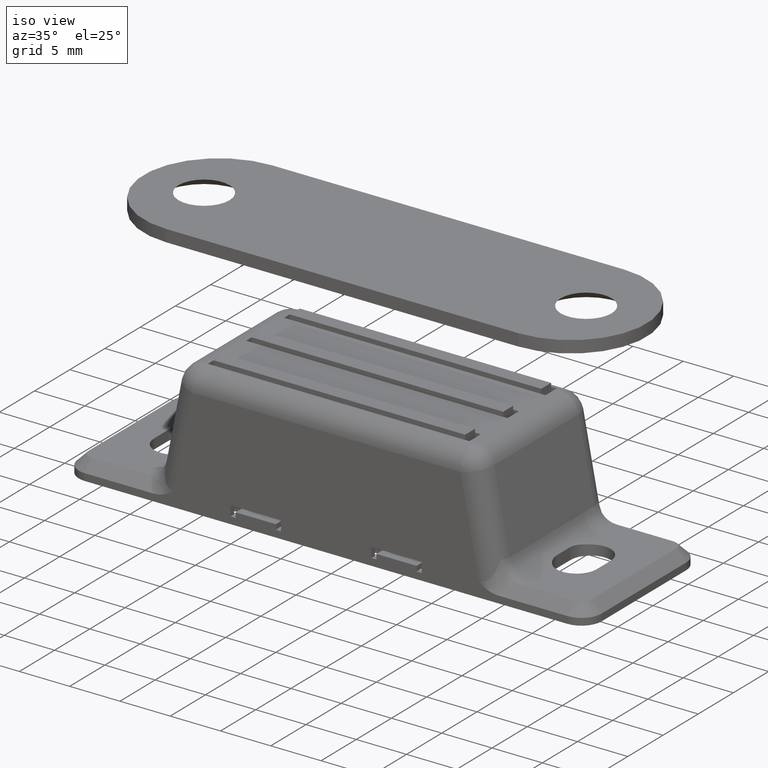
[diagram: clean part render]
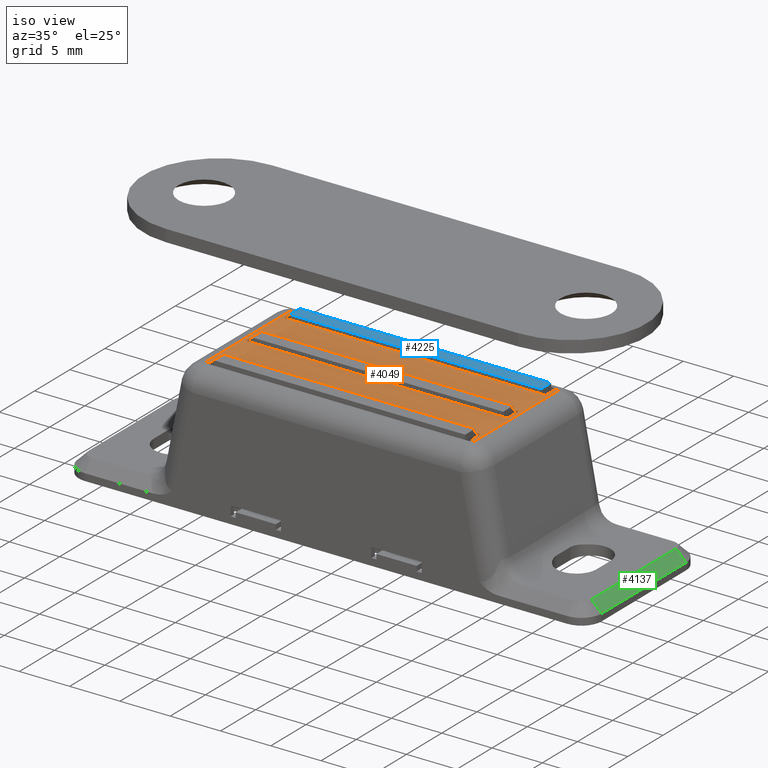
[diagram: same view with three faces highlighted in distinct colors, each labeled with its STEP entity id]
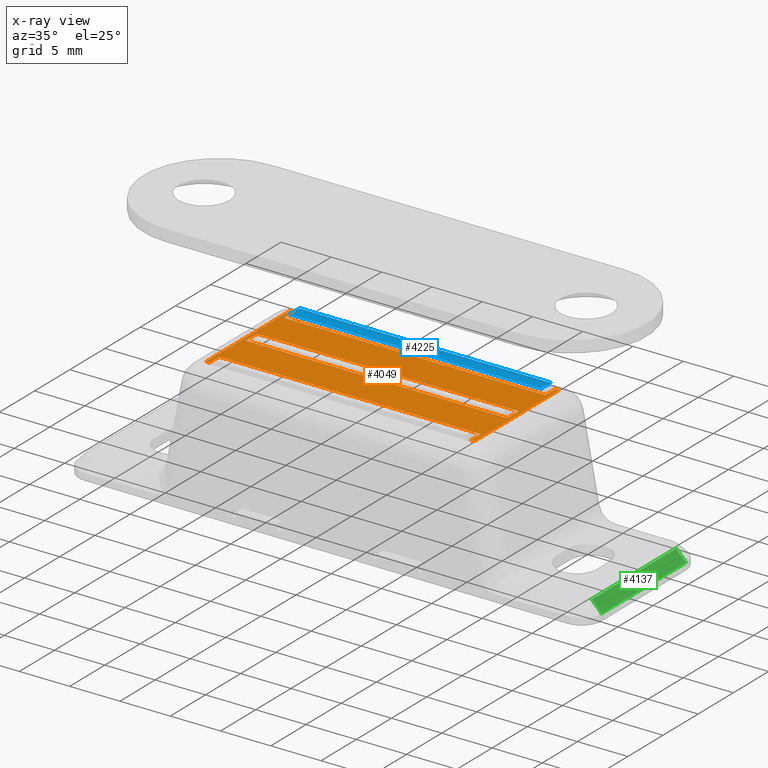
[diagram: x-ray of the same camera — body ghosted, the three highlighted faces saturated]
A machine part, iso view with three faces highlighted in distinct colors.
The next image is the same camera in x-ray (body ghosted, the three faces saturated) — at least one of them is partly hidden behind the body in this view.
Their STEP definitions:

[orange] entity #4049 — the highlighted planar face has unit normal (0, 0, 1).
#140=FACE_BOUND('',#569,.T.);
#339=FACE_OUTER_BOUND('',#568,.T.);
#568=EDGE_LOOP('',(#2798,#2799,#2800,#2801,#2802,#2803,#2804,#2805,#2806,
#2807,#2808,#2809));
#569=EDGE_LOOP('',(#2810,#2811,#2812,#2813));
#840=LINE('',#5850,#1280);
#842=LINE('',#5856,#1282);
#849=LINE('',#5874,#1289);
#852=LINE('',#5882,#1292);
#855=LINE('',#5888,#1295);
#858=LINE('',#5894,#1298);
#861=LINE('',#5898,#1301);
#865=LINE('',#5911,#1305);
#869=LINE('',#5922,#1309);
#873=LINE('',#5930,#1313);
#880=LINE('',#5953,#1320);
#881=LINE('',#5955,#1321);
#882=LINE('',#5956,#1322);
#883=LINE('',#5958,#1323);
#884=LINE('',#5960,#1324);
#885=LINE('',#5961,#1325);
#1280=VECTOR('',#4692,26.);
#1282=VECTOR('',#4698,1.4);
#1289=VECTOR('',#4715,1.4);
#1292=VECTOR('',#4720,1.6);
#1295=VECTOR('',#4725,26.);
#1298=VECTOR('',#4730,1.6);
#1301=VECTOR('',#4735,26.);
#1305=VECTOR('',#4745,1.4);
#1309=VECTOR('',#4755,1.4);
#1313=VECTOR('',#4763,26.);
#1320=VECTOR('',#4784,0.351327228364999);
#1321=VECTOR('',#4785,12.);
#1322=VECTOR('',#4786,0.351327228364999);
#1323=VECTOR('',#4787,0.351327228364999);
#1324=VECTOR('',#4788,12.);
#1325=VECTOR('',#4789,0.351327228364999);
#1704=VERTEX_POINT('',#5847);
#1705=VERTEX_POINT('',#5849);
#1706=VERTEX_POINT('',#5853);
#1712=VERTEX_POINT('',#5869);
#1716=VERTEX_POINT('',#5879);
#1717=VERTEX_POINT('',#5881);
#1719=VERTEX_POINT('',#5887);
#1721=VERTEX_POINT('',#5893);
#1723=VERTEX_POINT('',#5901);
#1727=VERTEX_POINT('',#5909);
#1730=VERTEX_POINT('',#5919);
#1731=VERTEX_POINT('',#5921);
#1742=VERTEX_POINT('',#5952);
#1743=VERTEX_POINT('',#5954);
#1744=VERTEX_POINT('',#5957);
#1745=VERTEX_POINT('',#5959);
#2108=EDGE_CURVE('',#1705,#1704,#840,.T.);
#2111=EDGE_CURVE('',#1704,#1706,#842,.T.);
#2121=EDGE_CURVE('',#1712,#1705,#849,.T.);
#2124=EDGE_CURVE('',#1717,#1716,#852,.T.);
#2127=EDGE_CURVE('',#1719,#1717,#855,.T.);
#2130=EDGE_CURVE('',#1721,#1719,#858,.T.);
#2133=EDGE_CURVE('',#1716,#1721,#861,.T.);
#2139=EDGE_CURVE('',#1723,#1727,#865,.T.);
#2144=EDGE_CURVE('',#1731,#1730,#869,.T.);
#2149=EDGE_CURVE('',#1727,#1731,#873,.T.);
#2160=EDGE_CURVE('',#1742,#1706,#880,.T.);
#2161=EDGE_CURVE('',#1743,#1742,#881,.T.);
#2162=EDGE_CURVE('',#1723,#1743,#882,.T.);
#2163=EDGE_CURVE('',#1744,#1730,#883,.T.);
#2164=EDGE_CURVE('',#1745,#1744,#884,.T.);
#2165=EDGE_CURVE('',#1712,#1745,#885,.T.);
#2798=ORIENTED_EDGE('',*,*,#2121,.T.);
#2799=ORIENTED_EDGE('',*,*,#2108,.T.);
#2800=ORIENTED_EDGE('',*,*,#2111,.T.);
#2801=ORIENTED_EDGE('',*,*,#2160,.F.);
#2802=ORIENTED_EDGE('',*,*,#2161,.F.);
#2803=ORIENTED_EDGE('',*,*,#2162,.F.);
#2804=ORIENTED_EDGE('',*,*,#2139,.T.);
#2805=ORIENTED_EDGE('',*,*,#2149,.T.);
#2806=ORIENTED_EDGE('',*,*,#2144,.T.);
#2807=ORIENTED_EDGE('',*,*,#2163,.F.);
#2808=ORIENTED_EDGE('',*,*,#2164,.F.);
#2809=ORIENTED_EDGE('',*,*,#2165,.F.);
#2810=ORIENTED_EDGE('',*,*,#2124,.T.);
#2811=ORIENTED_EDGE('',*,*,#2133,.T.);
#2812=ORIENTED_EDGE('',*,*,#2130,.T.);
#2813=ORIENTED_EDGE('',*,*,#2127,.T.);
#3898=PLANE('',#4299);
#4049=ADVANCED_FACE('',(#339,#140),#3898,.T.);
#4299=AXIS2_PLACEMENT_3D('',#5951,#4782,#4783);
#4692=DIRECTION('',(-1.,0.,0.));
#4698=DIRECTION('',(0.,1.,0.));
#4715=DIRECTION('',(0.,-1.,0.));
#4720=DIRECTION('',(0.,1.,0.));
#4725=DIRECTION('',(-1.,-5.33761069531325E-18,0.));
#4730=DIRECTION('',(0.,-1.,0.));
#4735=DIRECTION('',(1.,-2.66880534765663E-17,0.));
#4745=DIRECTION('',(0.,1.,0.));
#4755=DIRECTION('',(1.38777878078144E-15,-1.,0.));
#4763=DIRECTION('',(1.,0.,0.));
#4782=DIRECTION('center_axis',(0.,0.,1.));
#4783=DIRECTION('ref_axis',(1.,0.,0.));
#4784=DIRECTION('',(1.,0.,0.));
#4785=DIRECTION('',(0.,1.,0.));
#4786=DIRECTION('',(-1.,0.,0.));
#4787=DIRECTION('',(-1.,0.,0.));
#4788=DIRECTION('',(0.,-1.,0.));
#4789=DIRECTION('',(1.,0.,0.));
#5847=CARTESIAN_POINT('',(-13.,4.6,12.8));
#5849=CARTESIAN_POINT('',(13.,4.6,12.8));
#5850=CARTESIAN_POINT('',(-1.,4.6,12.8));
#5853=CARTESIAN_POINT('',(-13.,6.,12.8));
#5856=CARTESIAN_POINT('',(-13.,2.3,12.8));
#5869=CARTESIAN_POINT('',(13.,6.,12.8));
#5874=CARTESIAN_POINT('',(13.,3.1,12.8));
#5879=CARTESIAN_POINT('',(-13.,0.800000000000001,12.8));
#5881=CARTESIAN_POINT('',(-13.,-0.800000000000001,12.8));
#5882=CARTESIAN_POINT('',(-13.,-0.4,12.8));
#5887=CARTESIAN_POINT('',(13.,-0.800000000000001,12.8));
#5888=CARTESIAN_POINT('',(-1.,-0.800000000000001,12.8));
#5893=CARTESIAN_POINT('',(13.,0.8,12.8));
#5894=CARTESIAN_POINT('',(13.,0.4,12.8));
#5898=CARTESIAN_POINT('',(-14.,0.800000000000001,12.8));
#5901=CARTESIAN_POINT('',(-13.,-6.,12.8));
#5909=CARTESIAN_POINT('',(-13.,-4.6,12.8));
#5911=CARTESIAN_POINT('',(-13.,-3.1,12.8));
#5919=CARTESIAN_POINT('',(13.,-6.,12.8));
#5921=CARTESIAN_POINT('',(13.,-4.6,12.8));
#5922=CARTESIAN_POINT('',(13.,-2.29999999999998,12.8));
#5930=CARTESIAN_POINT('',(-14.,-4.6,12.8));
#5951=CARTESIAN_POINT('Origin',(-15.,0.,12.8));
#5952=CARTESIAN_POINT('',(-13.351327228365,6.,12.8));
#5953=CARTESIAN_POINT('',(-7.5,6.,12.8));
#5954=CARTESIAN_POINT('',(-13.351327228365,-6.,12.8));
#5955=CARTESIAN_POINT('',(-13.351327228365,0.,12.8));
#5956=CARTESIAN_POINT('',(-7.5,-6.,12.8));
#5957=CARTESIAN_POINT('',(13.351327228365,-6.,12.8));
#5958=CARTESIAN_POINT('',(-7.5,-6.,12.8));
#5959=CARTESIAN_POINT('',(13.351327228365,6.,12.8));
#5960=CARTESIAN_POINT('',(13.351327228365,0.,12.8));
#5961=CARTESIAN_POINT('',(-7.5,6.,12.8));

[blue] entity #4225 — the highlighted planar face has unit normal (0, 0, 1).
#515=FACE_OUTER_BOUND('',#761,.T.);
#761=EDGE_LOOP('',(#3770,#3771,#3772,#3773));
#1182=LINE('',#7460,#1622);
#1188=LINE('',#7474,#1628);
#1194=LINE('',#7482,#1634);
#1196=LINE('',#7486,#1636);
#1622=VECTOR('',#5618,1.4);
#1628=VECTOR('',#5628,1.4);
#1634=VECTOR('',#5638,25.);
#1636=VECTOR('',#5644,25.);
#2022=VERTEX_POINT('',#7456);
#2023=VERTEX_POINT('',#7458);
#2028=VERTEX_POINT('',#7471);
#2029=VERTEX_POINT('',#7473);
#2606=EDGE_CURVE('',#2022,#2023,#1182,.T.);
#2612=EDGE_CURVE('',#2029,#2028,#1188,.T.);
#2618=EDGE_CURVE('',#2029,#2023,#1194,.T.);
#2620=EDGE_CURVE('',#2022,#2028,#1196,.T.);
#3770=ORIENTED_EDGE('',*,*,#2606,.T.);
#3771=ORIENTED_EDGE('',*,*,#2618,.F.);
#3772=ORIENTED_EDGE('',*,*,#2612,.T.);
#3773=ORIENTED_EDGE('',*,*,#2620,.F.);
#4000=PLANE('',#4571);
#4225=ADVANCED_FACE('',(#515),#4000,.T.);
#4571=AXIS2_PLACEMENT_3D('',#7485,#5642,#5643);
#5618=DIRECTION('',(0.,1.,0.));
#5628=DIRECTION('',(0.,-1.,0.));
#5638=DIRECTION('',(1.,0.,0.));
#5642=DIRECTION('center_axis',(0.,0.,1.));
#5643=DIRECTION('ref_axis',(0.,-1.,0.));
#5644=DIRECTION('',(-1.,0.,0.));
#7456=CARTESIAN_POINT('',(12.5,4.7,13.2));
#7458=CARTESIAN_POINT('',(12.5,6.1,13.2));
#7460=CARTESIAN_POINT('',(12.5,-1.66533453693773E-15,13.2));
#7471=CARTESIAN_POINT('',(-12.5,4.7,13.2));
#7473=CARTESIAN_POINT('',(-12.5,6.1,13.2));
#7474=CARTESIAN_POINT('',(-12.5,-1.66533453693773E-15,13.2));
#7482=CARTESIAN_POINT('',(0.,6.1,13.2));
#7485=CARTESIAN_POINT('Origin',(0.,6.1,13.2));
#7486=CARTESIAN_POINT('',(0.,4.7,13.2));

[green] entity #4137 — the highlighted planar face has unit normal (0.7071, 0, 0.7071).
#427=FACE_OUTER_BOUND('',#664,.T.);
#664=EDGE_LOOP('',(#3280,#3281,#3282,#3283));
#977=LINE('',#6990,#1417);
#993=LINE('',#7027,#1433);
#994=LINE('',#7031,#1434);
#995=LINE('',#7032,#1435);
#1417=VECTOR('',#5175,12.);
#1433=VECTOR('',#5219,1.41421356237311);
#1434=VECTOR('',#5224,1.4142135623731);
#1435=VECTOR('',#5225,12.);
#1876=VERTEX_POINT('',#6987);
#1877=VERTEX_POINT('',#6989);
#1884=VERTEX_POINT('',#7026);
#1885=VERTEX_POINT('',#7030);
#2376=EDGE_CURVE('',#1877,#1876,#977,.T.);
#2395=EDGE_CURVE('',#1877,#1884,#993,.T.);
#2397=EDGE_CURVE('',#1876,#1885,#994,.T.);
#2398=EDGE_CURVE('',#1885,#1884,#995,.T.);
#3280=ORIENTED_EDGE('',*,*,#2395,.F.);
#3281=ORIENTED_EDGE('',*,*,#2376,.T.);
#3282=ORIENTED_EDGE('',*,*,#2397,.T.);
#3283=ORIENTED_EDGE('',*,*,#2398,.T.);
#3927=PLANE('',#4462);
#4137=ADVANCED_FACE('',(#427),#3927,.T.);
#4462=AXIS2_PLACEMENT_3D('',#7029,#5222,#5223);
#5175=DIRECTION('',(0.,-1.,0.));
#5219=DIRECTION('',(0.707106781186541,0.,-0.707106781186554));
#5222=DIRECTION('center_axis',(0.707106781186549,0.,0.707106781186546));
#5223=DIRECTION('ref_axis',(0.707106781186546,0.,-0.707106781186549));
#5224=DIRECTION('',(0.707106781186546,0.,-0.707106781186549));
#5225=DIRECTION('',(0.,1.,0.));
#6987=CARTESIAN_POINT('',(25.,-6.,1.7));
#6989=CARTESIAN_POINT('',(25.,6.,1.7));
#6990=CARTESIAN_POINT('',(25.,0.,1.7));
#7026=CARTESIAN_POINT('',(26.,6.,0.699999999999986));
#7027=CARTESIAN_POINT('',(25.,6.,1.7));
#7029=CARTESIAN_POINT('Origin',(25.5,0.,1.2));
#7030=CARTESIAN_POINT('',(26.,-6.,0.7));
#7031=CARTESIAN_POINT('',(25.,-6.,1.7));
#7032=CARTESIAN_POINT('',(26.,0.,0.7));